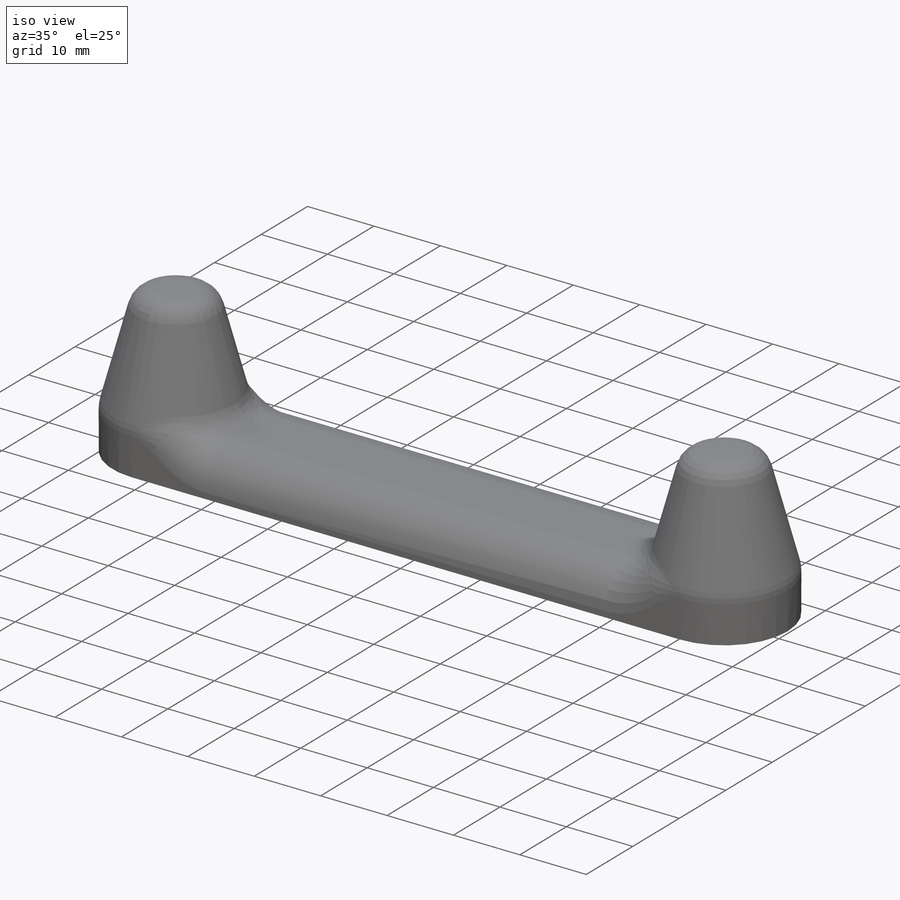
[diagram: iso view]
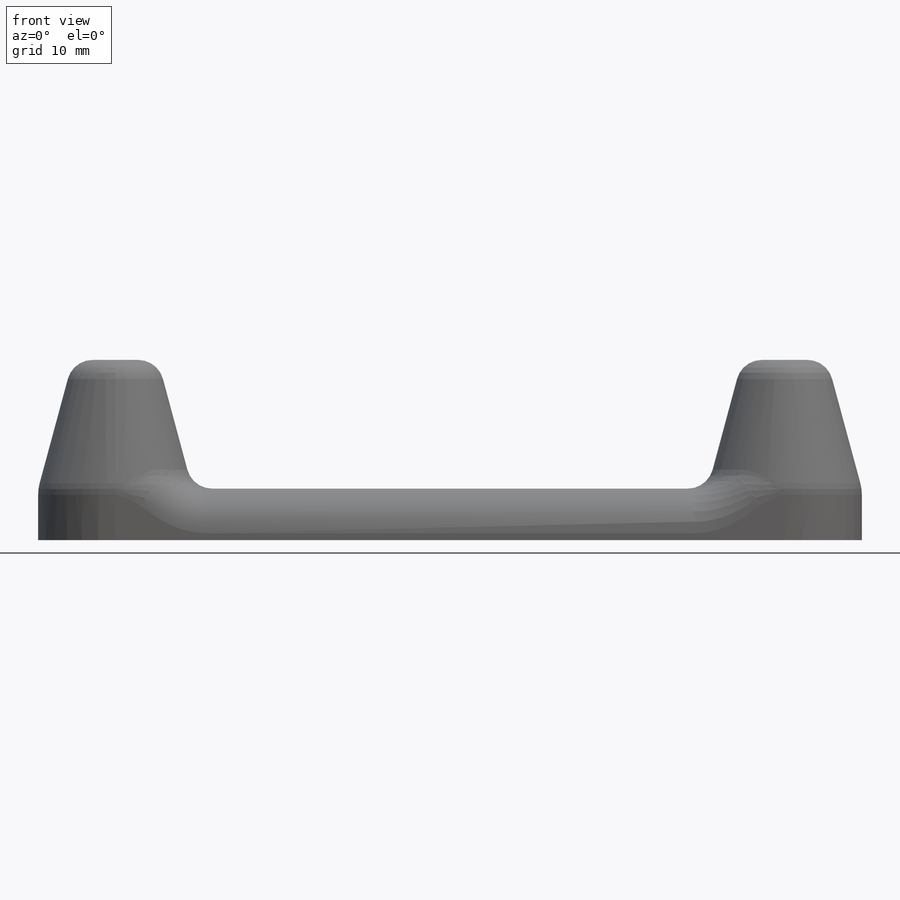
[diagram: front view]
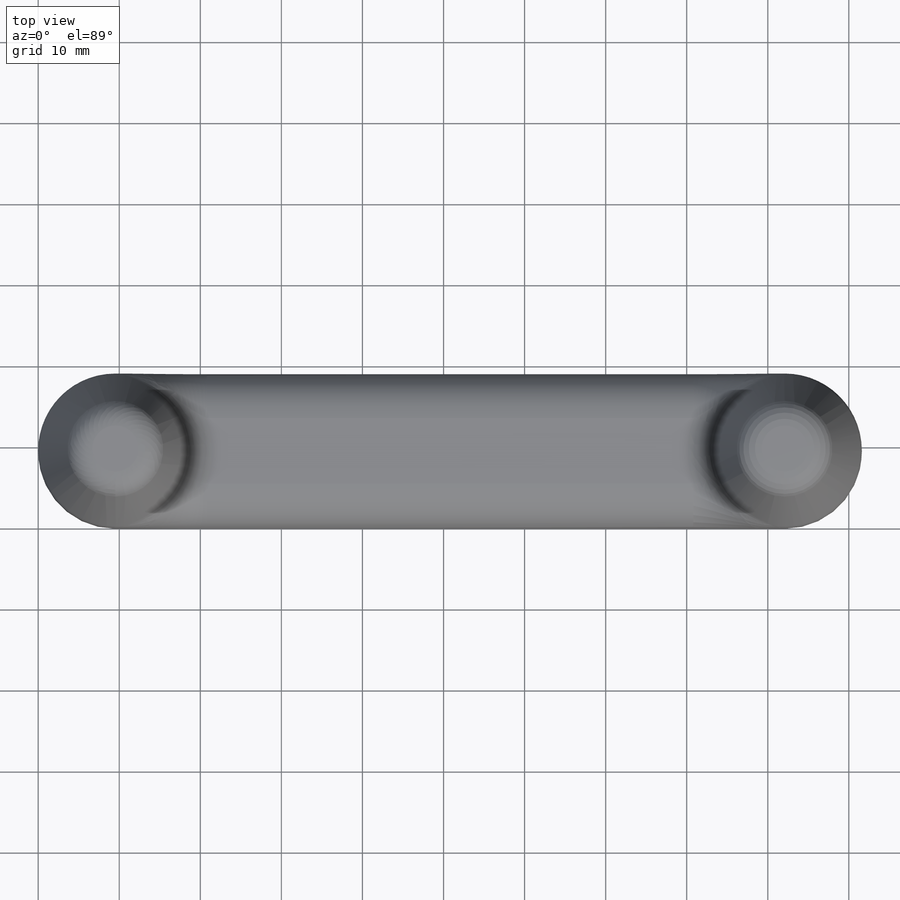
[diagram: top view]
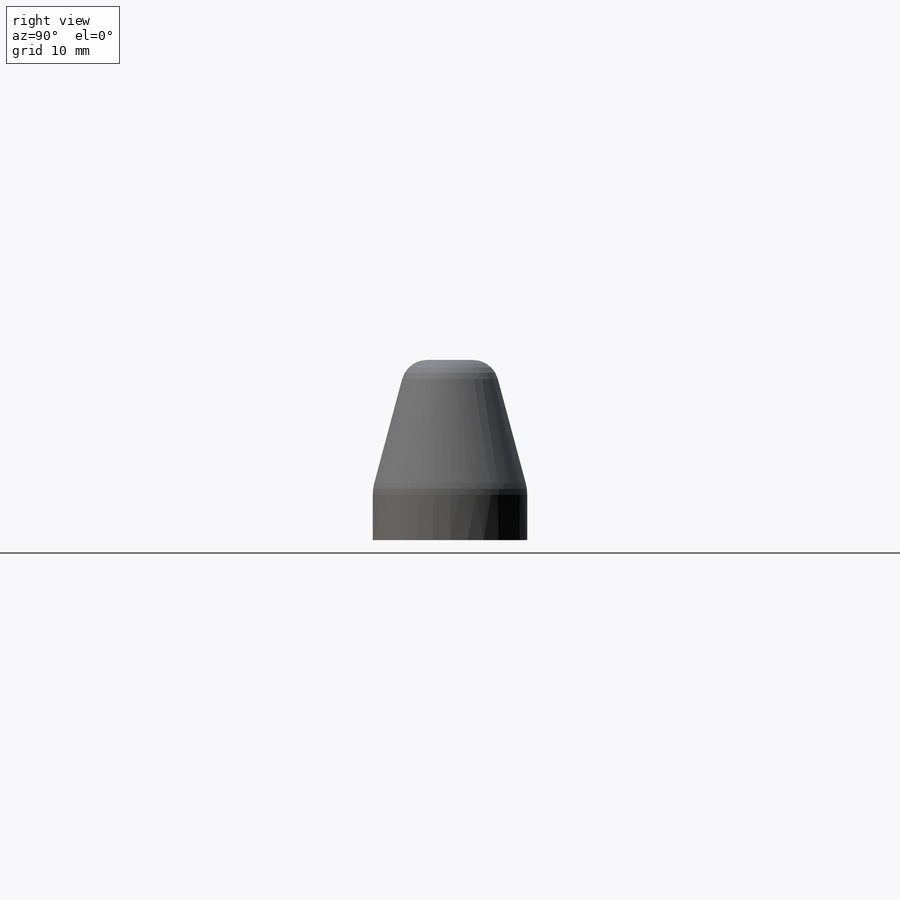
[diagram: right view]
SOLIDWORKS PART (.sldprt)
format: sldprt  version: not decoded by parser v0  size: 775,680 bytes
history: native  units: mm
features: sketch x7, extrude x2, fillet x2, chamfer x2, helix x2, plane x2, sweep x2, material x1, cut_extrude x1 (+11 scaffold rows collapsed)
feature tree (32):
  scaffold x11  (default folders/planes/origin — collapsed)
  material  "Material <not specified>"
  sketch  "Sketch1"  dims[D3=9.5mm D1=101.6mm D2=19.05mm]
  extrude  "Boss-Extrude1"  Depth=6.35mm
  sketch  "Sketch2"  dims[c1.D2=7.62mm c1.D1=9.525mm c2.D2=41.275mm c2.D3=50.8mm]
  extrude  "Boss-Extrude3"  Depth=15.875mm
  fillet  "Fillet5"  Radius=3.175mm
  fillet  "Fillet6"  Radius=5.5mm
  sketch  "Sketch3"  dims[c1.D2=~3.68829mm c1.D1=9.525mm c2.D2=41.275mm c2.D3=50.8mm]
  cut_extrude  "Cut-Extrude1"  Depth=19mm
  chamfer  "Chamfer1"  Distance=2.2mm Angle=45deg
  sketch  "Sketch5"
  sketch  "Sketch6"
  helix  "Helix/Spiral1"  Pitch=16.51mm
  helix  "Helix/Spiral2"  Pitch=16.51mm
  plane  "Plane2"  Offset=9.525mm
  plane  "Plane3"  Offset=82.55mm
  sketch  "Sketch7"  dims[c1.D1=9.525mm c1.D2=~0.592705mm c2.D2=300.0deg c2.D3=~0.592705mm c3.D3=300.0deg c3.D4=3.175mm c3.D5=1.0mm c3.D6=0.0mm]
  chamfer  "Chamfer2"  Distance=0.75mm Angle=45deg
  sweep  "Cut-Sweep3"
  sketch  "Sketch8"
  sweep  "Cut-Sweep4"
decode coverage: 13 of 18 modeling features carry decoded parameters
note: ~ marks probable driven/reference dimensions
note: suppression state not decoded; provenance and decode notes live in map.json
